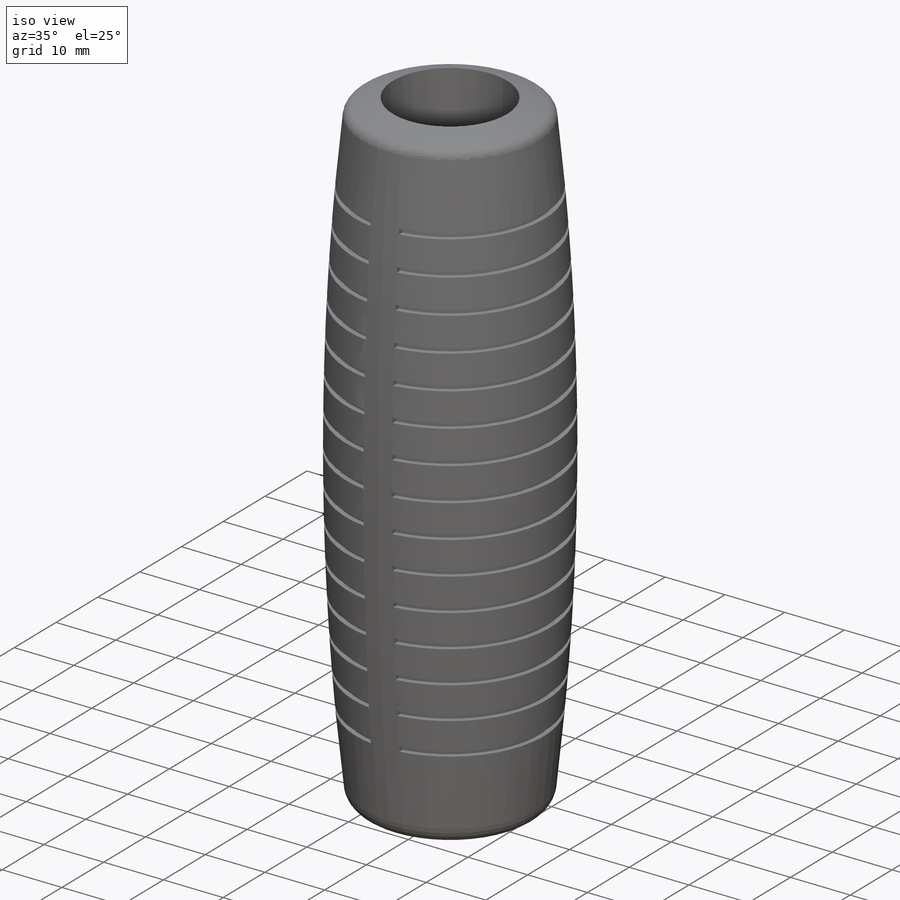
[diagram: iso view]
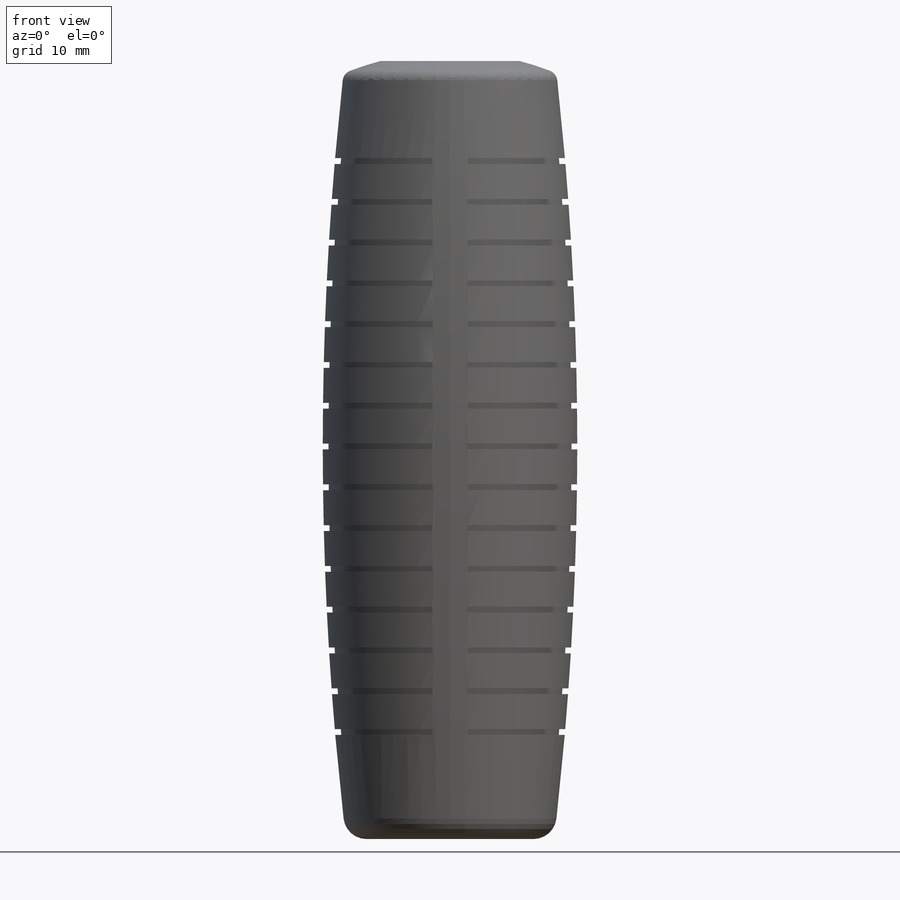
[diagram: front view]
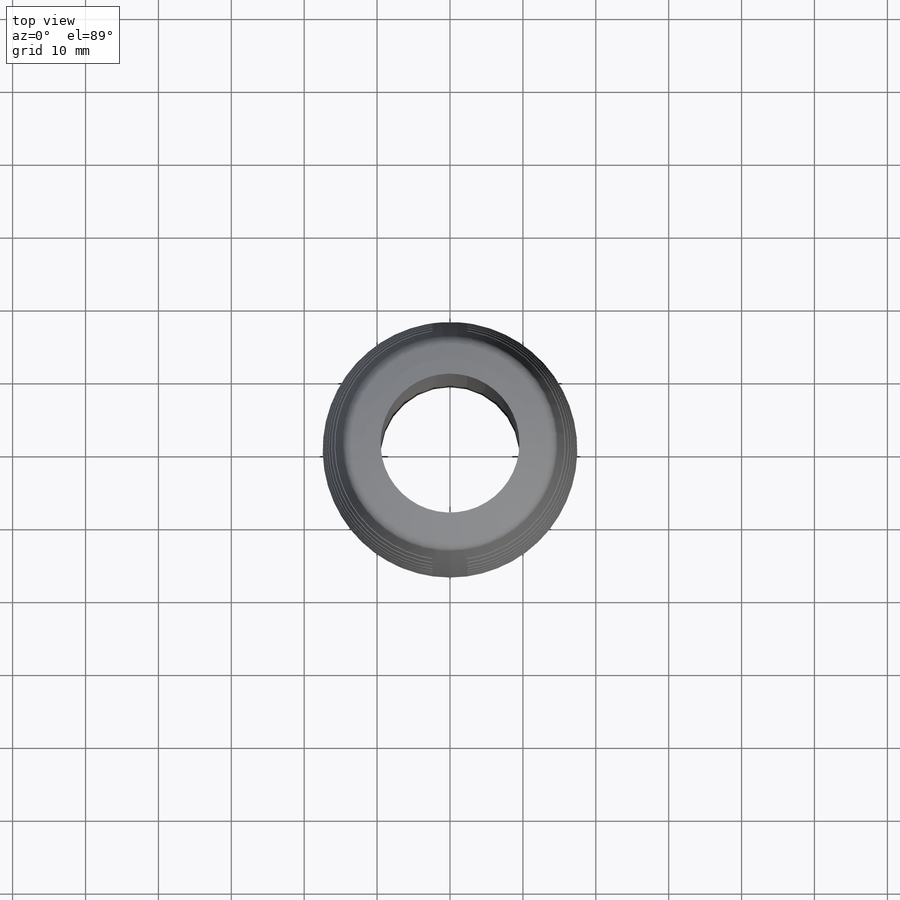
[diagram: top view]
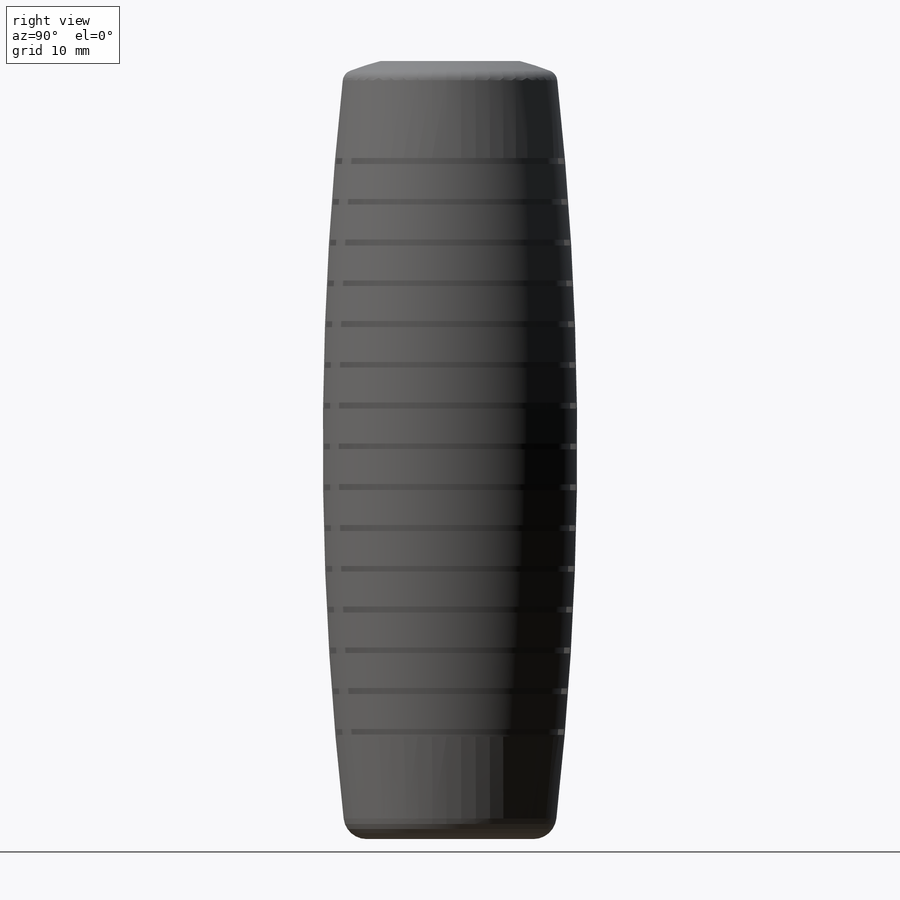
[diagram: right view]
SOLIDWORKS PART (.sldprt)
format: sldprt  version: not decoded by parser v0  size: 494,592 bytes
history: native  units: mm
features: sketch x5, extrude x2, cut_extrude x2, fillet x2, material x1, revolve x1 (+13 scaffold rows collapsed)
feature tree (26):
  scaffold x13  (default folders/planes/origin — collapsed)
  material  "Material <not specified>"
  sketch  "Sketch1"  dims[c1.D2=1.5875mm c1.D1=107.95mm c2.D2=17.4625mm c2.D3=14.2875mm c2.D4=14.2875mm c2.D5=38.1mm c3.D4=14.2875mm c3.D19=78.3209mm c4.D4=14.2875mm c4.D5=~0.79375mm c4.D6=4.8006mm c4.D7=~0.79375mm c4.D8=4.8006mm c4.D9=~0.79375mm c4.D10=4.8006mm c4.D11=~0.79375mm c4.D12=4.8006mm c4.D13=~0.79375mm c4.D14=4.8006mm c4.D15=~0.79375mm c4.D16=4.8006mm c4.D17=~0.79375mm c4.D18=4.8006mm c4.D19=~0.79375mm c4.D20=~0.79375mm c4.D21=4.8006mm c4.D22=~0.79375mm c4.D23=4.8006mm c4.D24=~0.79375mm c4.D25=4.8006mm c4.D26=~0.79375mm c4.D27=4.8006mm c4.D28=~0.79375mm c4.D29=4.8006mm c4.D30=~0.79375mm c4.D31=4.8006mm c4.D32=~0.79375mm c4.D33=4.8006mm c5.D20=~0.79375mm c5.D21=~0.79375mm]
  revolve  "Revolve2"  Angle=360deg
  sketch  "Sketch11"  dims[D1=~2.38125mm D2=~2.38125mm]
  extrude  "Boss-Extrude3"  [1 undecoded]
  sketch  "Sketch12"
  cut_extrude  "Cut-Extrude2"  [1 undecoded]
  sketch  "Sketch13"  dims[D1=19.05mm]
  cut_extrude  "Cut-Extrude3"  [1 undecoded]
  fillet  "Fillet1"  Radius=1.5875mm
  fillet  "Fillet2"  Radius=3.175mm
  sketch  "Sketch14"  dims[D1=15.24mm]
  extrude  "Boss-Extrude5"  [1 undecoded]
decode coverage: 7 of 12 modeling features carry decoded parameters
note: ~ marks probable driven/reference dimensions
note: 4 parameter values undecoded
summary: no parameter record found for 4 features
note: suppression state not decoded; provenance and decode notes live in map.json
